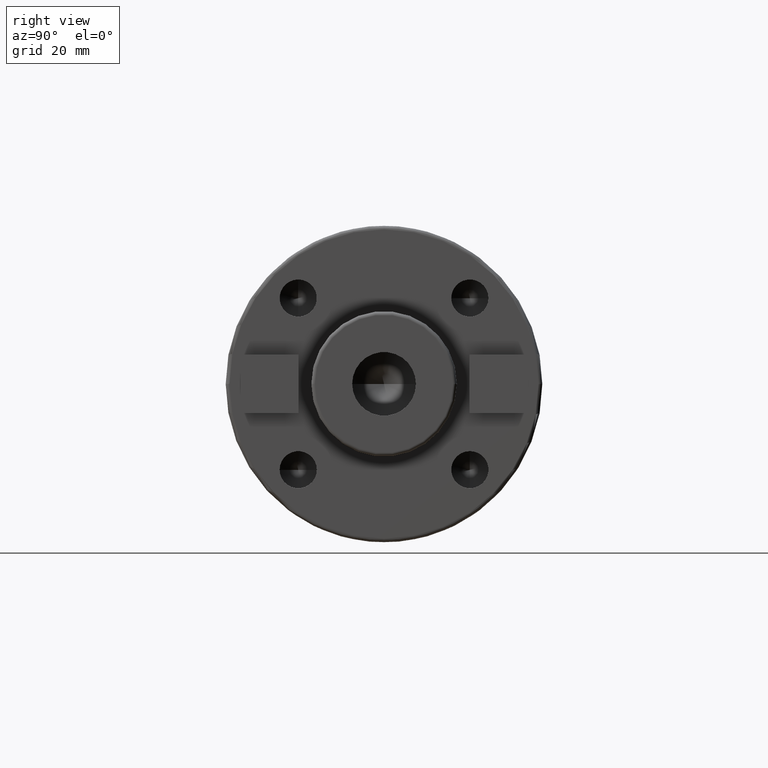
[diagram: clean part render]
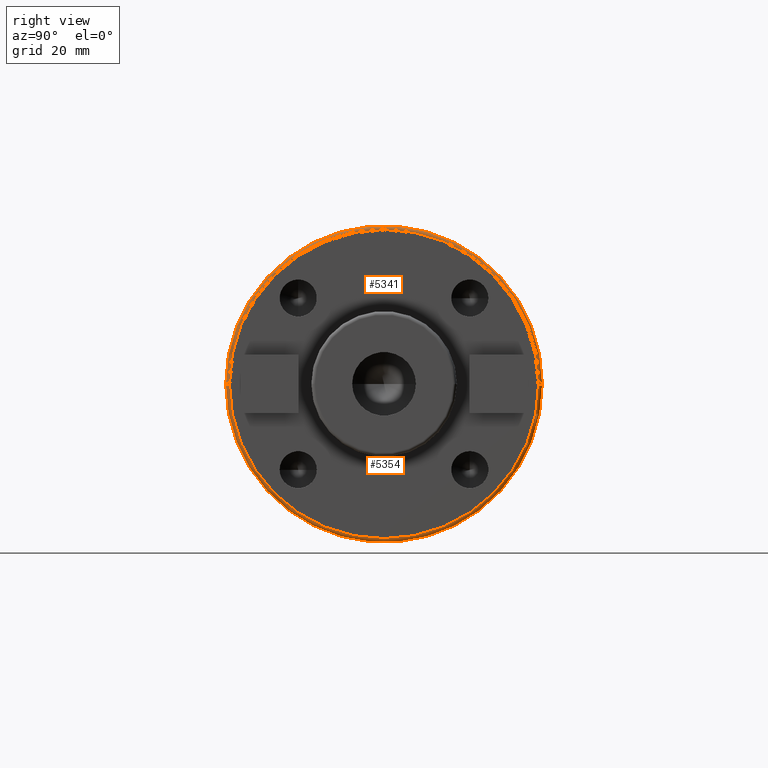
[diagram: same view with one multi-face feature highlighted, each face labeled with its STEP entity id]
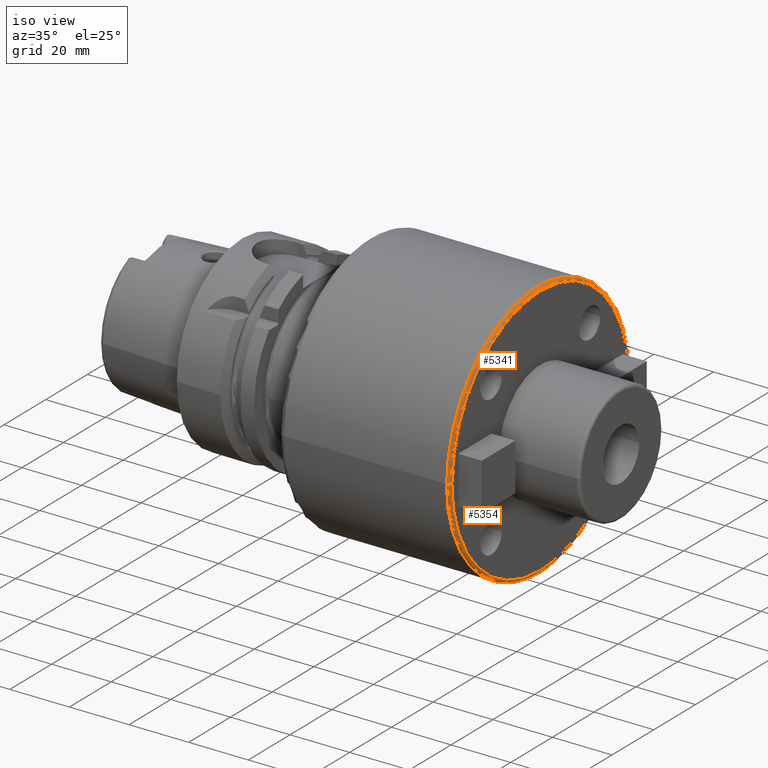
[diagram: same view with one multi-face feature highlighted, each face labeled with its STEP entity id]
A machine part, right view. The highlighted faces form ONE feature: a constant-radius fillet chain: 2 tangent blend faces with common blend radius 1 mm. The faces share edges in the B-rep.
A second angle (iso view) of the same feature is appended — it is thin or edge-on in the first view.
Their STEP definitions:
[1] entity #5354 (Torus):
#1535=CARTESIAN_POINT('',(9.9E1,0.E0,0.E0));
#1536=DIRECTION('',(-1.E0,0.E0,0.E0));
#1537=DIRECTION('',(0.E0,1.E0,0.E0));
#1538=AXIS2_PLACEMENT_3D('',#1535,#1536,#1537);
#1559=CARTESIAN_POINT('',(9.9E1,-4.25E1,-9.422324032116E-13));
#1560=DIRECTION('',(0.E0,-2.216998286342E-14,1.E0));
#1561=DIRECTION('',(0.E0,-1.E0,-2.216998286342E-14));
#1562=AXIS2_PLACEMENT_3D('',#1559,#1560,#1561);
#1564=CARTESIAN_POINT('',(9.9E1,4.25E1,9.489076191471E-13));
#1565=DIRECTION('',(0.E0,2.232719217843E-14,-1.E0));
#1566=DIRECTION('',(0.E0,1.E0,2.232719217843E-14));
#1567=AXIS2_PLACEMENT_3D('',#1564,#1565,#1566);
#1579=CARTESIAN_POINT('',(1.E2,0.E0,0.E0));
#1580=DIRECTION('',(-1.E0,0.E0,0.E0));
#1581=DIRECTION('',(0.E0,1.E0,0.E0));
#1582=AXIS2_PLACEMENT_3D('',#1579,#1580,#1581);
#3411=CARTESIAN_POINT('',(9.9E1,4.35E1,0.E0));
#3412=CARTESIAN_POINT('',(9.9E1,-4.35E1,-1.065442715258E-14));
#3413=VERTEX_POINT('',#3411);
#3414=VERTEX_POINT('',#3412);
#3415=CARTESIAN_POINT('',(1.E2,4.25E1,0.E0));
#3416=CARTESIAN_POINT('',(1.E2,-4.25E1,-1.040949779275E-14));
#3417=VERTEX_POINT('',#3415);
#3418=VERTEX_POINT('',#3416);
#5342=CARTESIAN_POINT('',(9.9E1,0.E0,0.E0));
#5343=DIRECTION('',(1.E0,0.E0,0.E0));
#5344=DIRECTION('',(0.E0,9.999985559381E-1,1.699447457826E-3));
#5345=AXIS2_PLACEMENT_3D('',#5342,#5343,#5344);
#5346=TOROIDAL_SURFACE('',#5345,4.25E1,1.E0);
#5347=ORIENTED_EDGE('',*,*,#5294,.T.);
#5348=ORIENTED_EDGE('',*,*,#5337,.T.);
#5350=ORIENTED_EDGE('',*,*,#5349,.F.);
#5351=ORIENTED_EDGE('',*,*,#5333,.F.);
#5352=EDGE_LOOP('',(#5347,#5348,#5350,#5351));
#5353=FACE_OUTER_BOUND('',#5352,.F.);
#5354=ADVANCED_FACE('',(#5353),#5346,.T.);
#1539=CIRCLE('',#1538,4.35E1);
#1563=CIRCLE('',#1562,1.E0);
#1568=CIRCLE('',#1567,1.E0);
#1583=CIRCLE('',#1582,4.25E1);
#5294=EDGE_CURVE('',#3413,#3414,#1539,.T.);
#5333=EDGE_CURVE('',#3413,#3417,#1568,.T.);
#5337=EDGE_CURVE('',#3414,#3418,#1563,.T.);
#5349=EDGE_CURVE('',#3417,#3418,#1583,.T.);
[2] entity #5341 (Torus):
#1549=CARTESIAN_POINT('',(9.9E1,0.E0,0.E0));
#1550=DIRECTION('',(-1.E0,0.E0,0.E0));
#1551=DIRECTION('',(0.E0,-1.E0,0.E0));
#1552=AXIS2_PLACEMENT_3D('',#1549,#1550,#1551);
#1559=CARTESIAN_POINT('',(9.9E1,-4.25E1,-9.422324032116E-13));
#1560=DIRECTION('',(0.E0,-2.216998286342E-14,1.E0));
#1561=DIRECTION('',(0.E0,-1.E0,-2.216998286342E-14));
#1562=AXIS2_PLACEMENT_3D('',#1559,#1560,#1561);
#1564=CARTESIAN_POINT('',(9.9E1,4.25E1,9.489076191471E-13));
#1565=DIRECTION('',(0.E0,2.232719217843E-14,-1.E0));
#1566=DIRECTION('',(0.E0,1.E0,2.232719217843E-14));
#1567=AXIS2_PLACEMENT_3D('',#1564,#1565,#1566);
#1584=CARTESIAN_POINT('',(1.E2,0.E0,0.E0));
#1585=DIRECTION('',(-1.E0,0.E0,0.E0));
#1586=DIRECTION('',(0.E0,-1.E0,0.E0));
#1587=AXIS2_PLACEMENT_3D('',#1584,#1585,#1586);
#3411=CARTESIAN_POINT('',(9.9E1,4.35E1,0.E0));
#3412=CARTESIAN_POINT('',(9.9E1,-4.35E1,-1.065442715258E-14));
#3413=VERTEX_POINT('',#3411);
#3414=VERTEX_POINT('',#3412);
#3415=CARTESIAN_POINT('',(1.E2,4.25E1,0.E0));
#3416=CARTESIAN_POINT('',(1.E2,-4.25E1,-1.040949779275E-14));
#3417=VERTEX_POINT('',#3415);
#3418=VERTEX_POINT('',#3416);
#5327=CARTESIAN_POINT('',(9.9E1,0.E0,0.E0));
#5328=DIRECTION('',(1.E0,0.E0,0.E0));
#5329=DIRECTION('',(0.E0,-9.999985559381E-1,-1.699447457826E-3));
#5330=AXIS2_PLACEMENT_3D('',#5327,#5328,#5329);
#5331=TOROIDAL_SURFACE('',#5330,4.25E1,1.E0);
#5332=ORIENTED_EDGE('',*,*,#5309,.T.);
#5334=ORIENTED_EDGE('',*,*,#5333,.T.);
#5336=ORIENTED_EDGE('',*,*,#5335,.F.);
#5338=ORIENTED_EDGE('',*,*,#5337,.F.);
#5339=EDGE_LOOP('',(#5332,#5334,#5336,#5338));
#5340=FACE_OUTER_BOUND('',#5339,.F.);
#5341=ADVANCED_FACE('',(#5340),#5331,.T.);
#1553=CIRCLE('',#1552,4.35E1);
#1563=CIRCLE('',#1562,1.E0);
#1568=CIRCLE('',#1567,1.E0);
#1588=CIRCLE('',#1587,4.25E1);
#5309=EDGE_CURVE('',#3414,#3413,#1553,.T.);
#5333=EDGE_CURVE('',#3413,#3417,#1568,.T.);
#5335=EDGE_CURVE('',#3418,#3417,#1588,.T.);
#5337=EDGE_CURVE('',#3414,#3418,#1563,.T.);